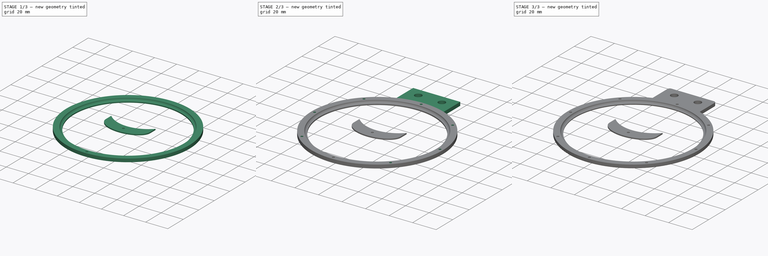
[diagram: build sequence overview — one tinted view per stage of 3, left to right]
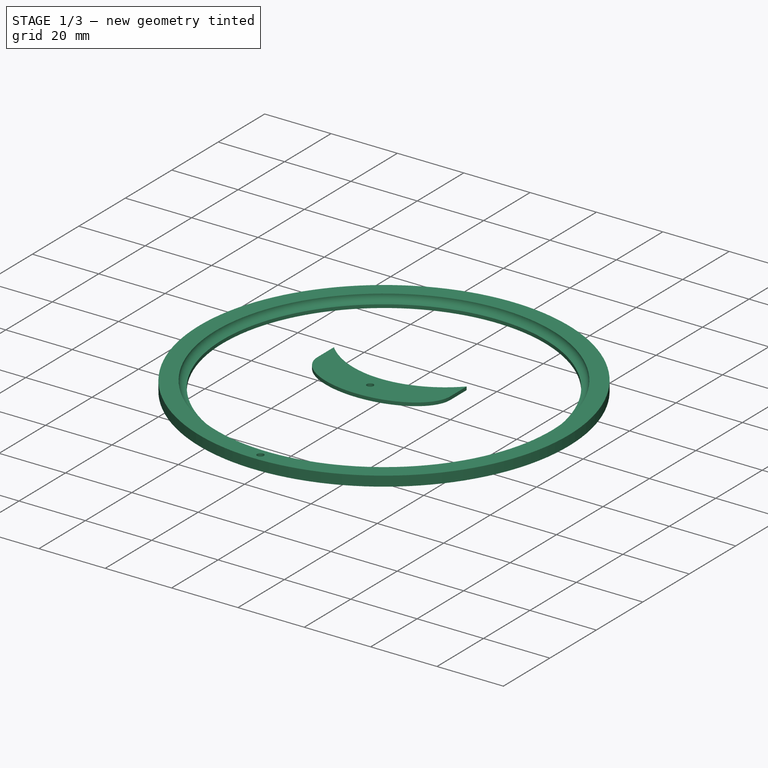
[diagram: stage 1 of 3 — iso view after this stage's code; geometry added in this stage tinted green]
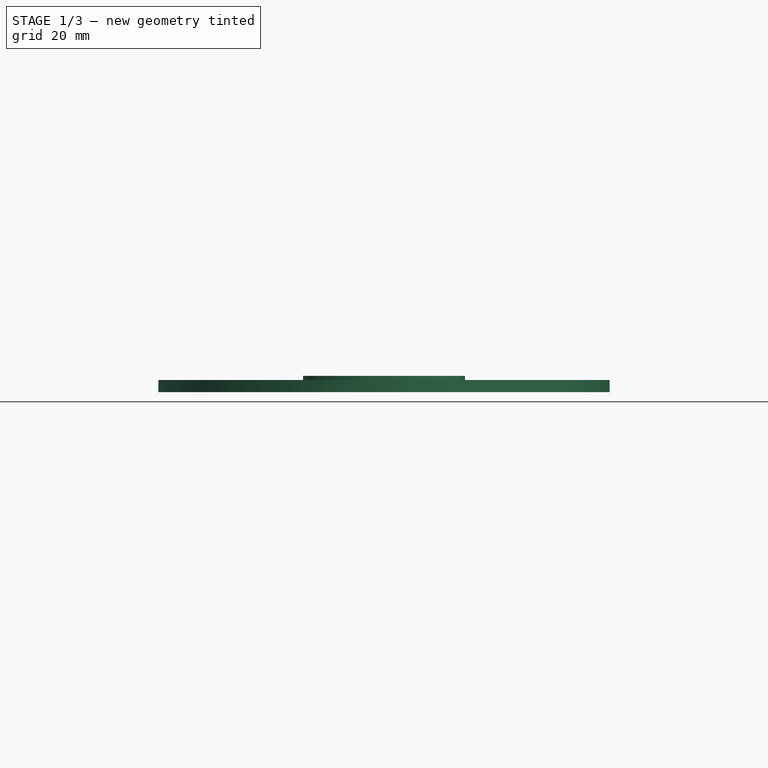
[diagram: stage 1 of 3 — front view after this stage's code; geometry added in this stage tinted green]
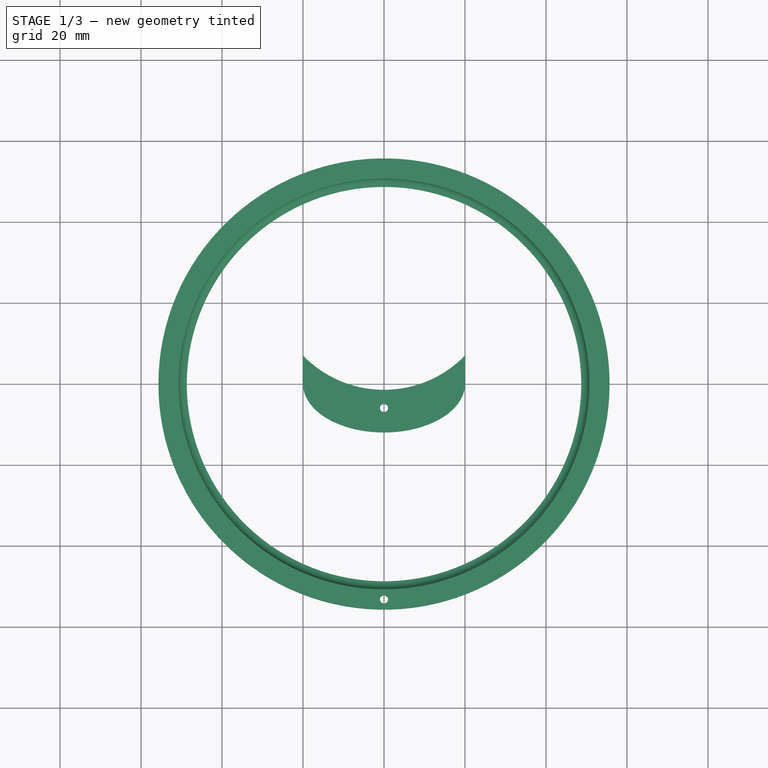
[diagram: stage 1 of 3 — top view after this stage's code; geometry added in this stage tinted green]
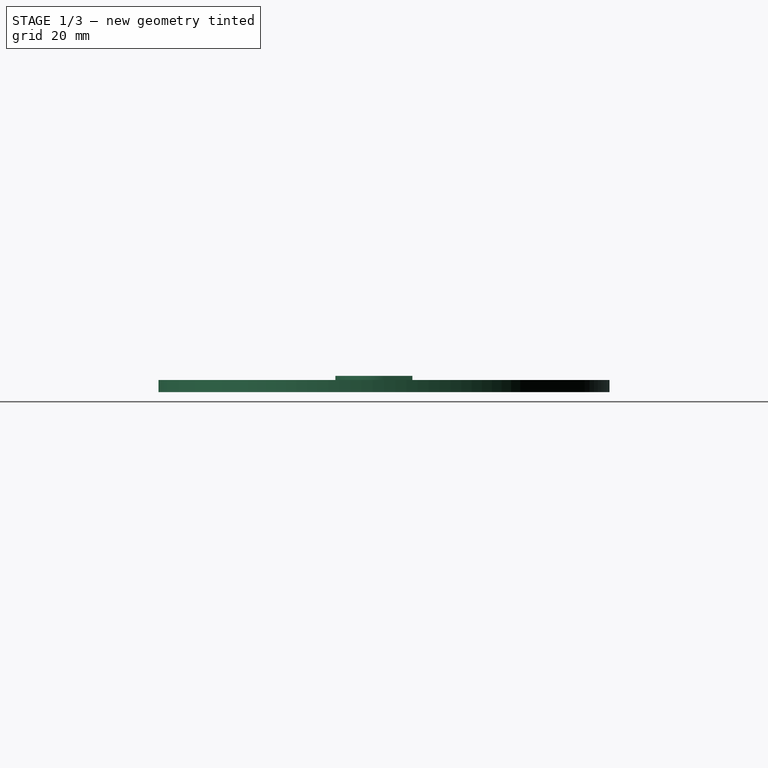
[diagram: stage 1 of 3 — right view after this stage's code; geometry added in this stage tinted green]
FCSTD DOCUMENT  (FreeCAD 0.21R33694 (Git))
Label: MagnifyingGlass
License: All rights reserved
LicenseURL: http://en.wikipedia.org/wiki/All_rights_reserved
objects: Sketcher::SketchObject×4, PartDesign::Fillet×3, PartDesign::Pad×2, PartDesign::Body×2, PartDesign::Revolution×1, PartDesign::Pocket×1, PartDesign::PolarPattern×1
note: 21 computed .brp shape members not serialized (recipe doc carries the construction recipe); baked Part::Feature solids carry a one-line shape summary decoded from their .brp

FEATURE [Sketcher::SketchObject] Sketch
  FullyConstrained = true
  MapMode = 5
  Placement = pos=(0,0,0) rot=(1,0,0;1.5708rad)
  Support = -> [XZ_Plane]
  sketch-geometry (5):
    g0: ArcOfCircle CenterX=-48.7 CenterY=2.44e-14 CenterZ=0 NormalX=0 NormalY=0 NormalZ=1 AngleXU=0 Radius=2 StartAngle=3.14159 EndAngle=4.71239
    g1: LineSegment StartX=-48.7 StartY=-2 StartZ=0 EndX=-48.7 EndY=-3 EndZ=0
    g2: LineSegment StartX=-48.7 StartY=-3 StartZ=0 EndX=-55.7 EndY=-3 EndZ=0
    g3: LineSegment StartX=-55.7 StartY=-3 StartZ=0 EndX=-55.7 EndY=2.44e-14 EndZ=0
    g4: LineSegment StartX=-55.7 StartY=2.44e-14 StartZ=0 EndX=-50.7 EndY=2.44e-14 EndZ=0
  constraints (16):
    c: Coincident(g0,g1)
    c: Coincident(g1,g2)
    c: Horizontal(g2)
    c: Coincident(g2,g3)
    c: PointOnObject(g3,g-1)
    c: Vertical(g3)
    c: Coincident(g3,g4)
    c: Coincident(g4,g0)
    c: DistanceX(g4,g4) = 5
    c: DistanceY(g3,g3) = 3
    c: DistanceY(g1,g1) = 1
    c: Vertical(g1)
    c: Horizontal(g3,g0)
    c: Horizontal(g0,g0)
    c: Vertical(g0,g0)
    c: DistanceX(g0,g-1) = 50.7
FEATURE [PartDesign::Revolution] Revolution
  Angle = 360
  Axis = (0,2e-16,1)
  Base = (0,0,0)
  Placement = pos=(0,0,0) rot=(1,0,0;1.5708rad)
  Profile = -> Sketch
  ReferenceAxis = -> Sketch [V_Axis]
FEATURE [Sketcher::SketchObject] Sketch001
  ExternalGeometry = -> [Revolution]
  FullyConstrained = true
  MapMode = 5
  Placement = pos=(0,0,2.44e-14) rot=(0,0,1;3.14159rad)
  Support = -> [Revolution]
  sketch-geometry (2):
    g0: Circle CenterX=0 CenterY=53.2 CenterZ=0 NormalX=0 NormalY=0 NormalZ=1 AngleXU=0 Radius=1
    g1: LineSegment StartX=0 StartY=50.7 StartZ=0 EndX=0 EndY=55.7 EndZ=0
  constraints (6):
    c: PointOnObject(g0,g-2)
    c: Diameter(g0) = 2
    c: PointOnObject(g1,g-3)
    c: PointOnObject(g1,g-4)
    c: Vertical(g1)
    c: Symmetric(g1,g1,g0)
FEATURE [PartDesign::Pocket] Pocket
  BaseFeature = -> Revolution
  Direction = (0,-2e-16,-1)
  Length = 5
  Length2 = 5
  Placement = pos=(0,0,0) rot=(1,0,0;1.5708rad)
  Profile = -> Sketch001
  ReferenceAxis = -> Sketch001 [N_Axis]
  Type = 1
FEATURE [PartDesign::Body] Body
  Group = -> [Sketch,Revolution,Sketch001,Pocket,PolarPattern,Sketch002,Pad,Fillet,Fillet001,Fillet002]
  Origin = -> Origin
  Tip = -> Fillet002
FEATURE [Sketcher::SketchObject] Sketch003
  FullyConstrained = true
  MapMode = 5
  Support = -> [XY_Plane001]
  sketch-geometry (10):
    g0: ArcOfEllipse CenterX=0 CenterY=0 CenterZ=0 NormalX=0 NormalY=0 NormalZ=1 MajorRadius=20 MinorRadius=12 AngleXU=-3.14159 StartAngle=0 EndAngle=3.14159
    g1: LineSegment StartX=-20 StartY=0 StartZ=0 EndX=20 EndY=0 EndZ=0
    g2: LineSegment StartX=0 StartY=-12 StartZ=0 EndX=0 EndY=12 EndZ=0
    g3: GeomPoint X=-16 Y=0 Z=0
    g4: GeomPoint X=16 Y=0 Z=0
    g5: LineSegment StartX=-20 StartY=0 StartZ=0 EndX=-20 EndY=7 EndZ=0
    g6: LineSegment StartX=20 StartY=-1.5e-15 StartZ=0 EndX=20 EndY=7 EndZ=0
    g7: ArcOfCircle CenterX=-2e-16 CenterY=26.381 CenterZ=0 NormalX=0 NormalY=0 NormalZ=1 AngleXU=0 Radius=27.85 StartAngle=3.91127 EndAngle=5.5135
    g8: Circle CenterX=0 CenterY=-5.96902 CenterZ=0 NormalX=0 NormalY=0 NormalZ=1 AngleXU=0 Radius=1
    g9: GeomPoint X=0 Y=-1.46902 Z=0
  constraints (21):
    c: InternalAlignment(g1-g4 -> g0) x4
    c: Coincident(g0,g-1)
    c: DistanceX(g1,g1) = 40
    c: Horizontal(g4,g0)
    c: DistanceY(g2,g0) = 12
    c: Coincident(g0,g1)
    c: PointOnObject(g0,g1)
    c: Coincident(g5,g0)
    c: Vertical(g5)
    c: Coincident(g6,g0)
    c: Equal(g5,g6)
    c: DistanceY(g5,g5) = 7
    c: Vertical(g6)
    c: Coincident(g7,g6)
    c: Coincident(g7,g5)
    c: Diameter(g7) = 55.7
    c: PointOnObject(g8,g2)
    c: PointOnObject(g9,g2)
    c: PointOnObject(g9,g7)
    c: DistanceY(g8,g9) = 4.5
    c: Diameter(g8) = 2
FEATURE [PartDesign::Pad] Pad001
  Direction = (0,0,1)
  Length = 1
  Length2 = 10
  Profile = -> Sketch003
  ReferenceAxis = -> Sketch003 [N_Axis]
  Type = 0
FEATURE [PartDesign::Body] Body001
  Group = -> [Sketch003,Pad001]
  Origin = -> Origin001
  Placement = pos=(0,49.5,3.5) rot=(0,0,1;0rad)
  Tip = -> Pad001
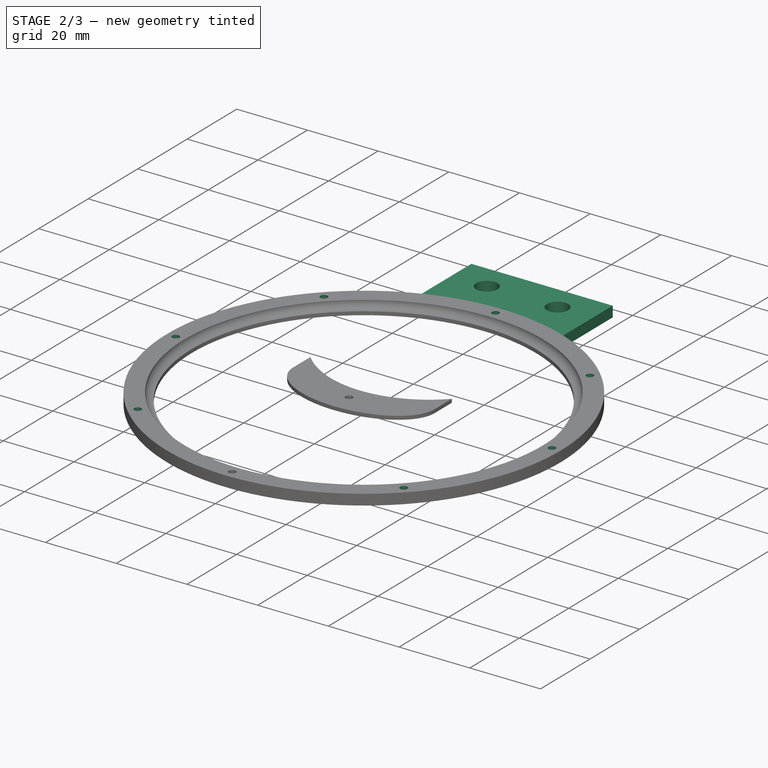
[diagram: stage 2 of 3 — iso view after this stage's code; geometry added in this stage tinted green]
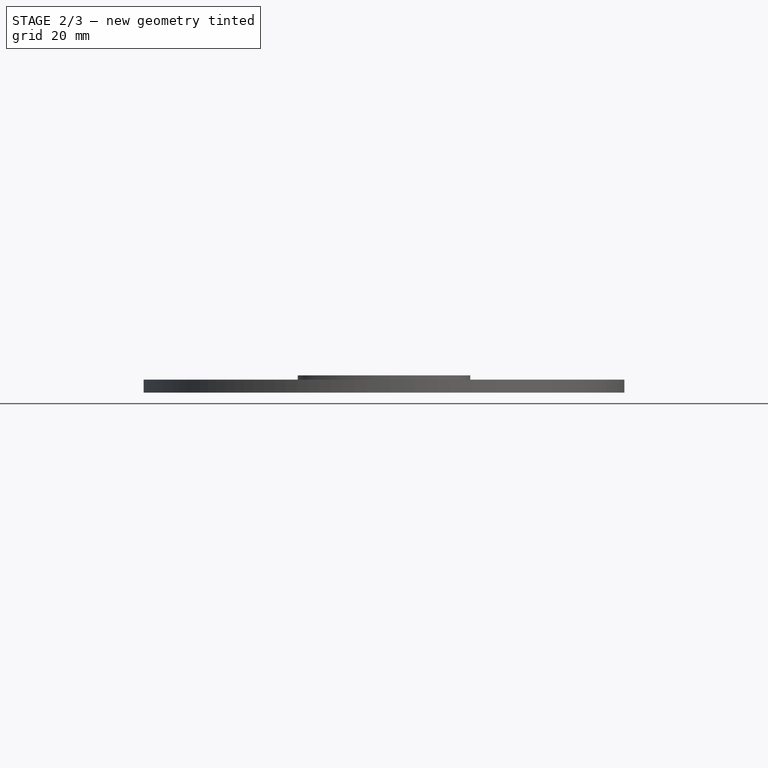
[diagram: stage 2 of 3 — front view after this stage's code; geometry added in this stage tinted green]
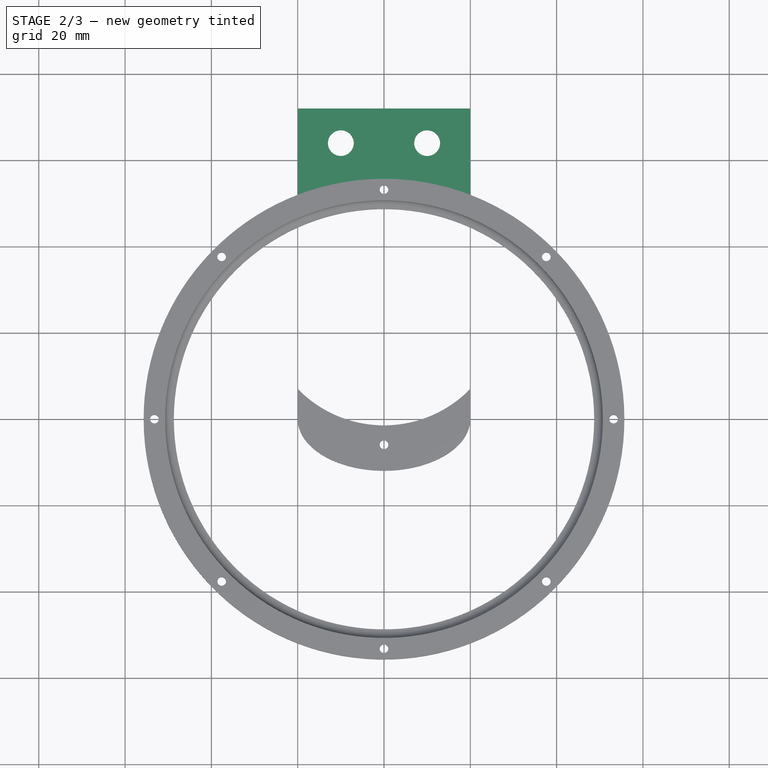
[diagram: stage 2 of 3 — top view after this stage's code; geometry added in this stage tinted green]
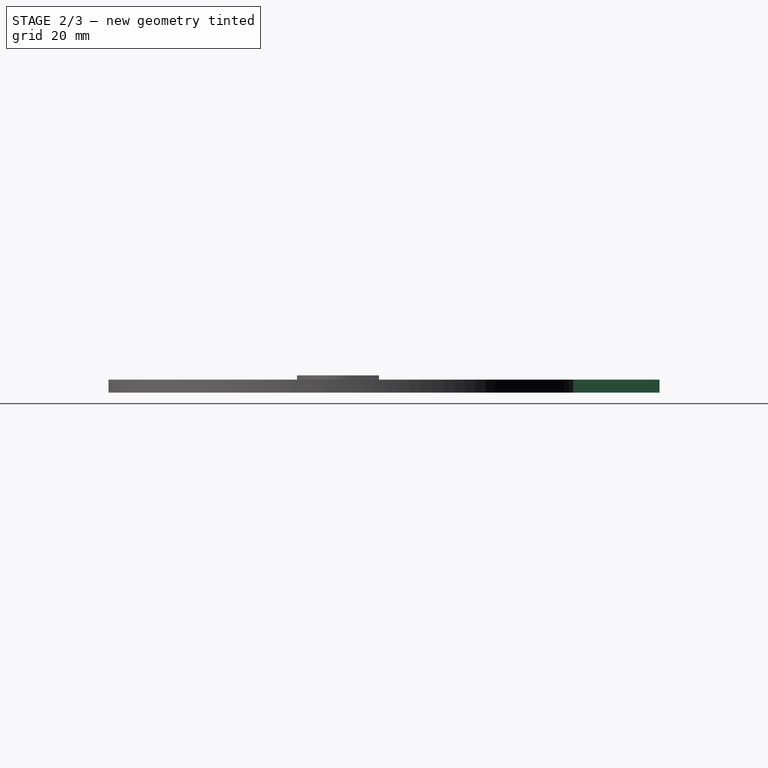
[diagram: stage 2 of 3 — right view after this stage's code; geometry added in this stage tinted green]
FEATURE [PartDesign::PolarPattern] PolarPattern
  Angle = 360
  Axis = -> Sketch001 [N_Axis]
  BaseFeature = -> Pocket
  Occurrences = 8
  Originals = -> [Pocket]
  Placement = pos=(0,0,0) rot=(1,0,0;1.5708rad)
FEATURE [Sketcher::SketchObject] Sketch002
  ExternalGeometry = -> [PolarPattern]
  FullyConstrained = true
  MapMode = 5
  Placement = pos=(0,0,2.44e-14) rot=(0,0,1;3.14159rad)
  Support = -> [PolarPattern]
  sketch-geometry (7):
    g0: LineSegment StartX=-20 StartY=-51.9855 StartZ=0 EndX=-20 EndY=-71.9855 EndZ=0
    g1: LineSegment StartX=-20 StartY=-71.9855 StartZ=0 EndX=20 EndY=-71.9855 EndZ=0
    g2: LineSegment StartX=20 StartY=-71.9855 StartZ=0 EndX=20 EndY=-51.9855 EndZ=0
    g3: ArcOfCircle CenterX=0 CenterY=0 CenterZ=0 NormalX=0 NormalY=0 NormalZ=1 AngleXU=0 Radius=55.7 StartAngle=4.34512 EndAngle=5.07966
    g4: Circle CenterX=-10 CenterY=-63.9855 CenterZ=0 NormalX=0 NormalY=0 NormalZ=1 AngleXU=0 Radius=3
    g5: Circle CenterX=10 CenterY=-63.9855 CenterZ=0 NormalX=0 NormalY=0 NormalZ=1 AngleXU=0 Radius=3
    g6: GeomPoint X=0 Y=-63.9855 Z=0
  constraints (19):
    c: PointOnObject(g0,g-3)
    c: Vertical(g0)
    c: Coincident(g0,g1)
    c: Horizontal(g1)
    c: Coincident(g1,g2)
    c: Vertical(g2)
    c: Equal(g0,g2)
    c: Coincident(g3,g-3)
    c: Coincident(g3,g2)
    c: Coincident(g3,g0)
    c: DistanceY(g2,g2) = 20
    c: DistanceX(g1,g1) = 40
    c: Equal(g4,g5)
    c: Diameter(g4) = 6
    c: Horizontal(g4,g5)
    c: Symmetric(g4,g5,g6)
    c: PointOnObject(g6,g-2)
    c: DistanceX(g0,g4) = 10
    c: DistanceY(g0,g4) = 8
FEATURE [PartDesign::Pad] Pad
  BaseFeature = -> PolarPattern
  Direction = (0,2e-16,1)
  Length = 3
  Length2 = 10
  Placement = pos=(0,0,0) rot=(1,0,0;1.5708rad)
  Profile = -> Sketch002
  ReferenceAxis = -> Sketch002 [N_Axis]
  Reversed = true
  Type = 3
  UpToFace = -> PolarPattern [Face13]
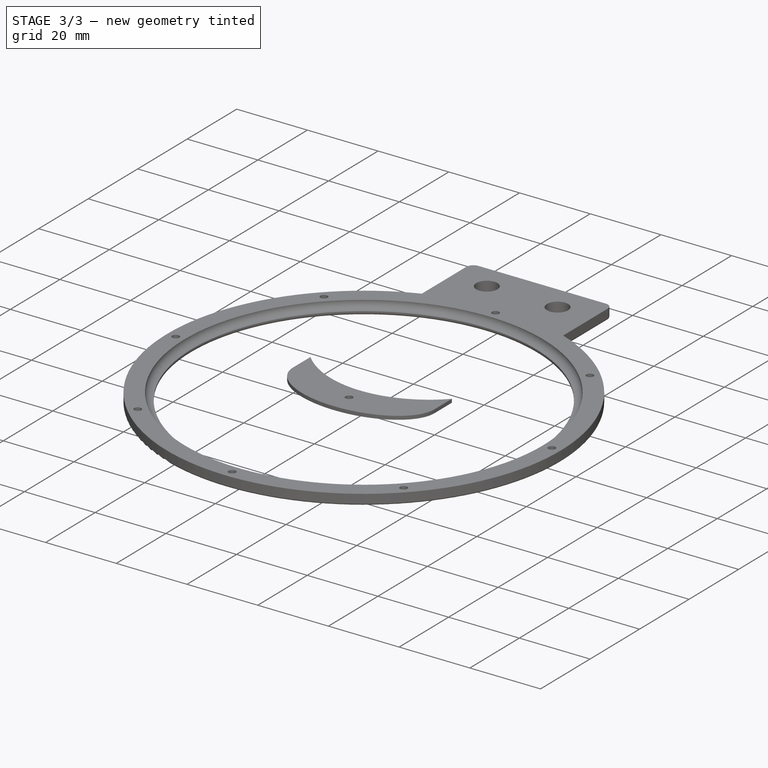
[diagram: stage 3 of 3 — iso view after this stage's code; geometry added in this stage tinted green]
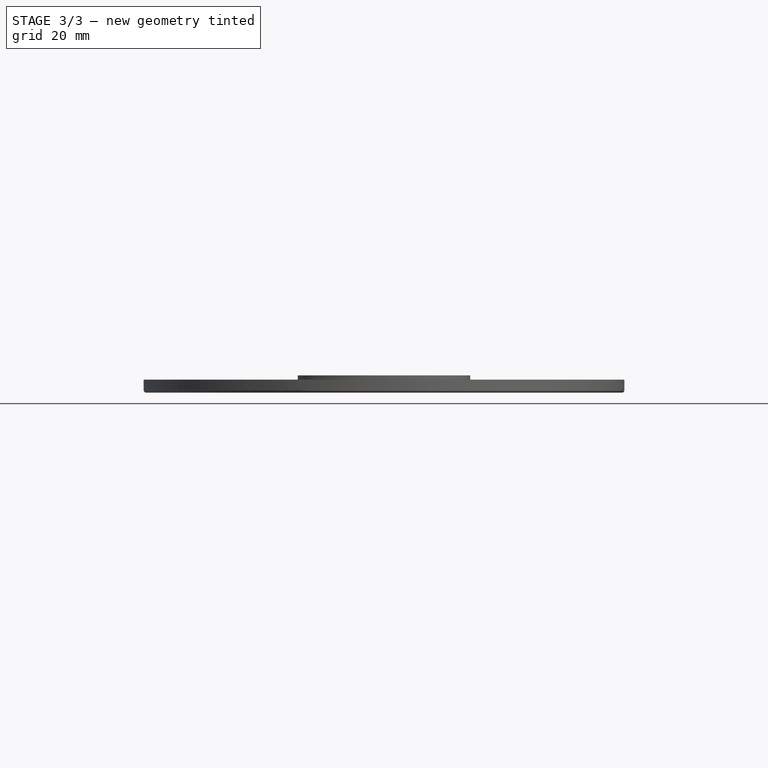
[diagram: stage 3 of 3 — front view after this stage's code; geometry added in this stage tinted green]
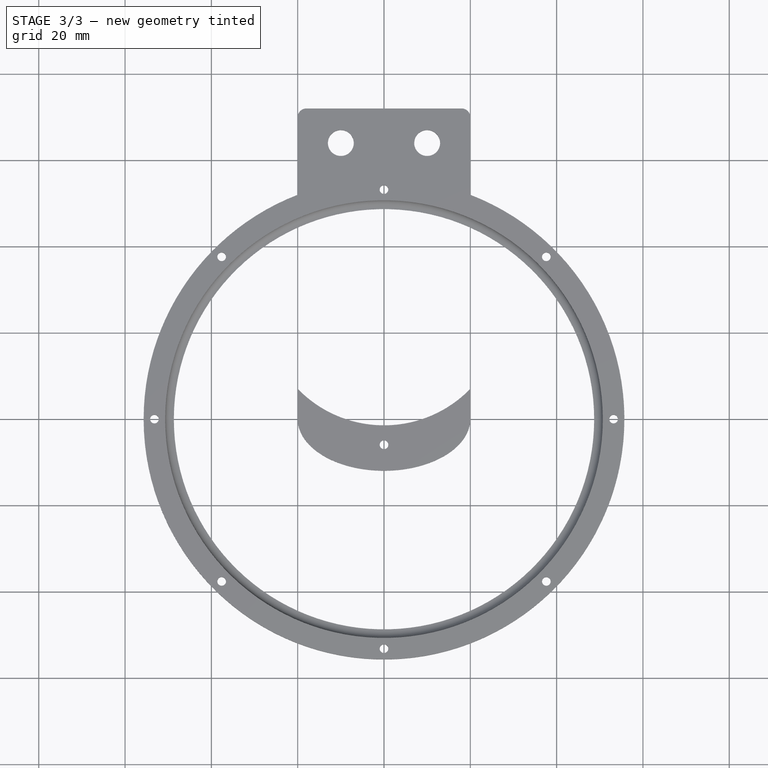
[diagram: stage 3 of 3 — top view after this stage's code; geometry added in this stage tinted green]
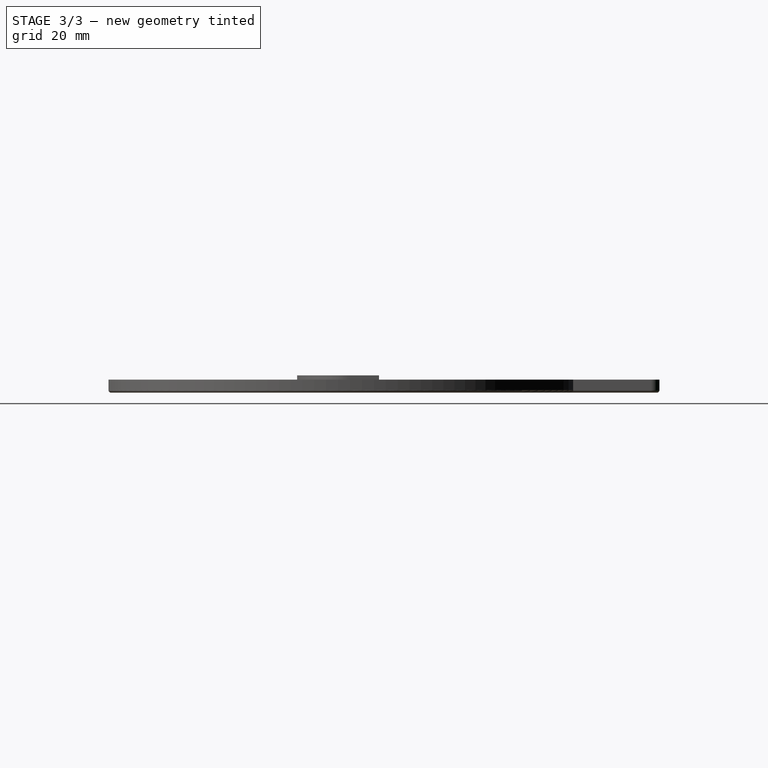
[diagram: stage 3 of 3 — right view after this stage's code; geometry added in this stage tinted green]
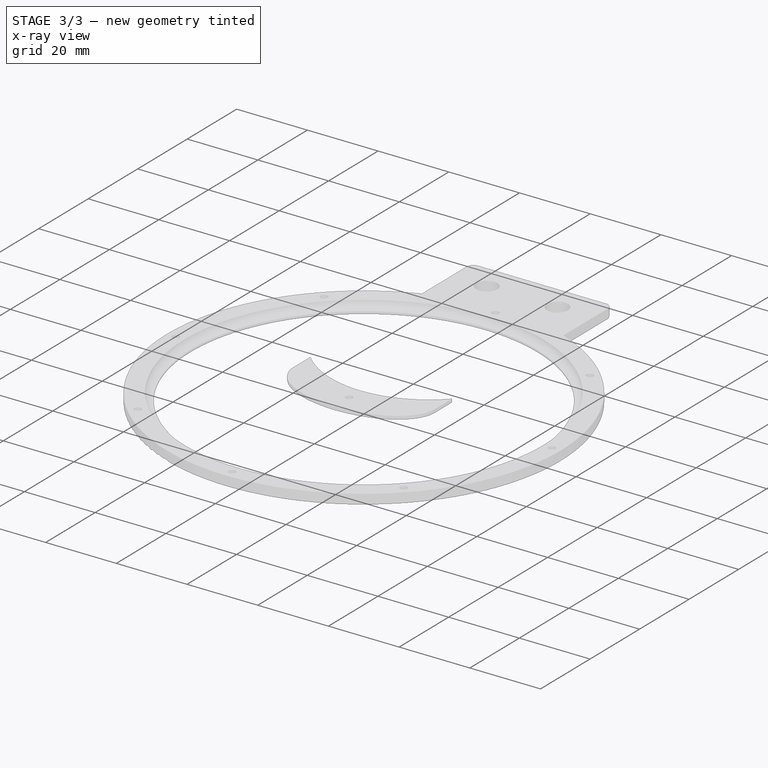
[diagram: stage 3 of 3 — x-ray composite at the iso view; earlier geometry ghosted, this stage's added geometry solid]
FEATURE [PartDesign::Fillet] Fillet
  Base = -> Pad [Edge15]
  BaseFeature = -> Pad
  Placement = pos=(0,0,0) rot=(1,0,0;1.5708rad)
  Radius = 0.7
  SupportTransform = false
  UseAllEdges = false
FEATURE [PartDesign::Fillet] Fillet001
  Base = -> Fillet [Edge52,Edge51]
  BaseFeature = -> Fillet
  Placement = pos=(0,0,0) rot=(1,0,0;1.5708rad)
  Radius = 2
  SupportTransform = false
  UseAllEdges = false
FEATURE [PartDesign::Fillet] Fillet002
  Base = -> Fillet001 [Edge4,Edge6,Edge5,Edge16,Edge15,Edge1,Edge2]
  BaseFeature = -> Fillet001
  Placement = pos=(0,0,0) rot=(1,0,0;1.5708rad)
  Radius = 0.6
  SupportTransform = false
  UseAllEdges = false
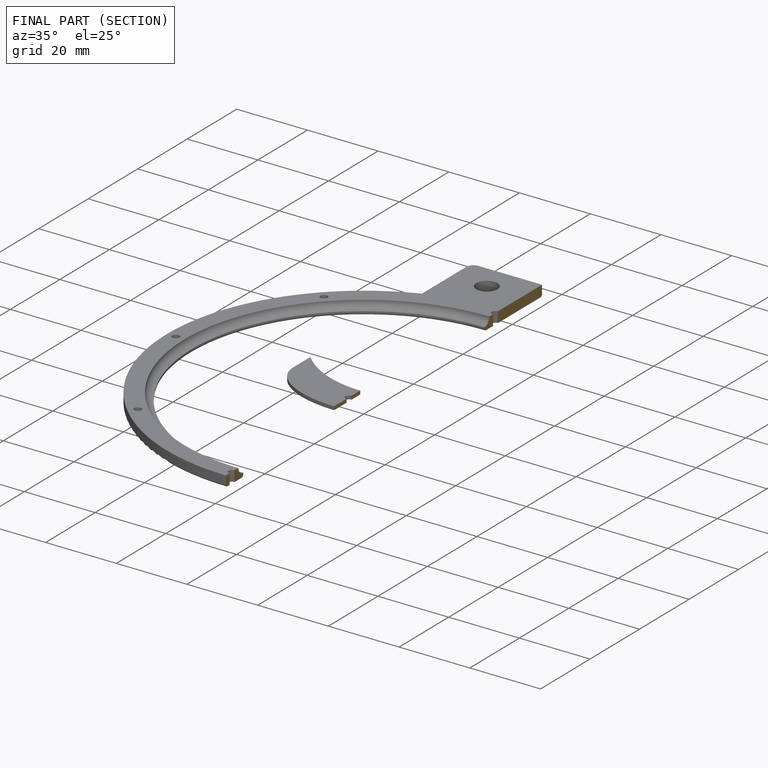
[diagram: finished part — half-section view (interior)]
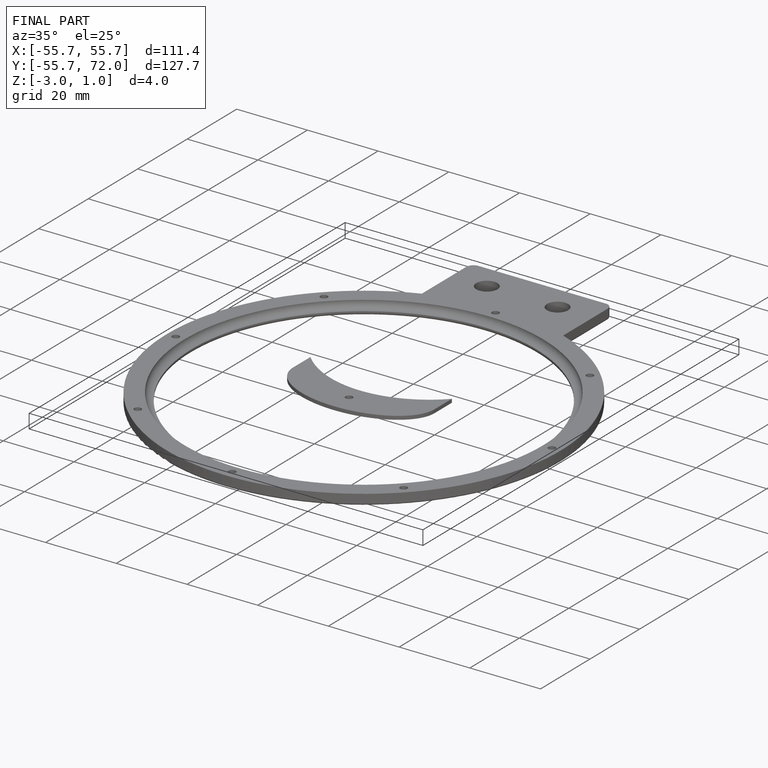
[diagram: finished part — iso view with bounding-box wireframe]
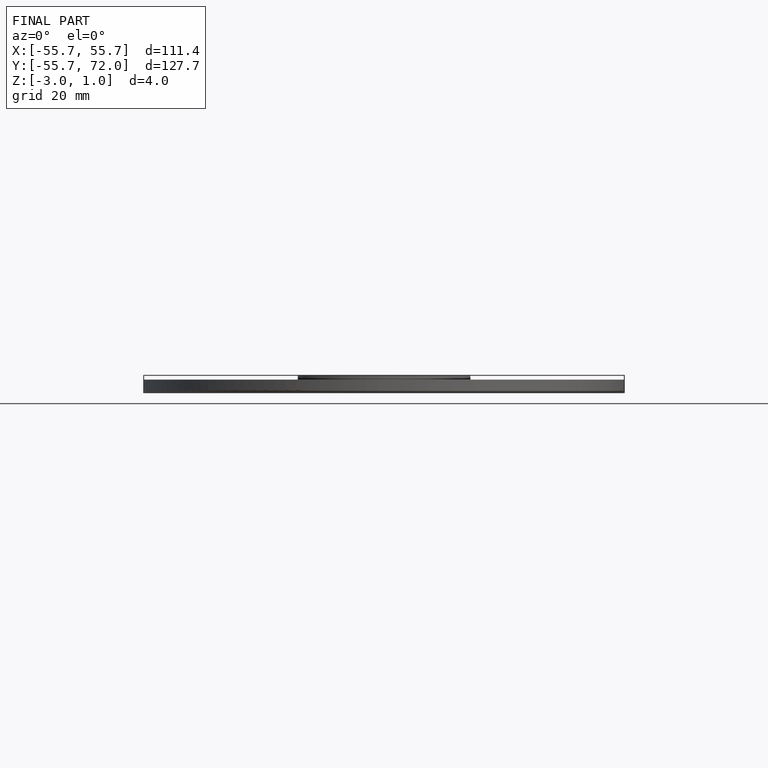
[diagram: finished part — front view with bounding-box wireframe]
